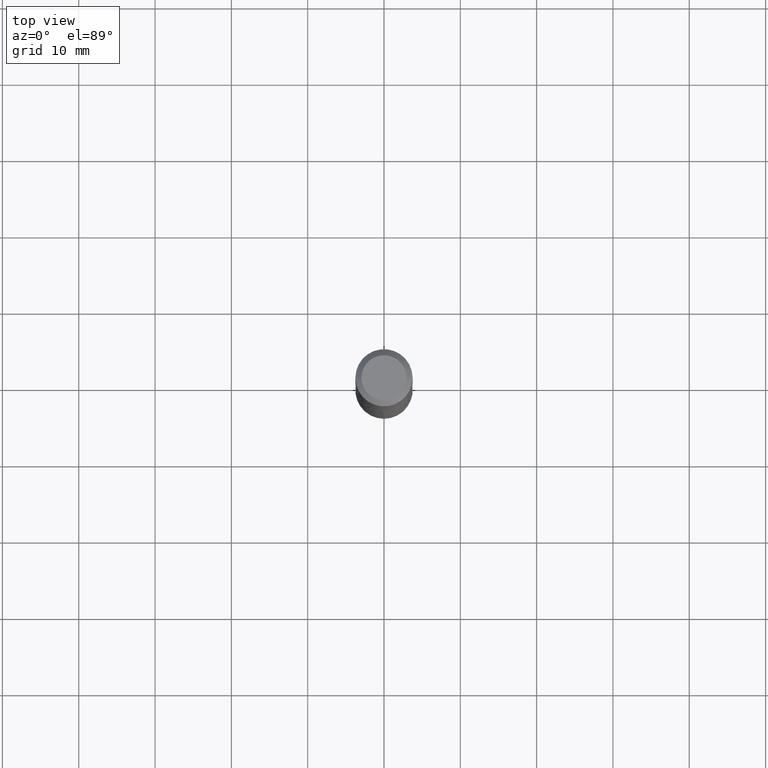
[diagram: clean part render]
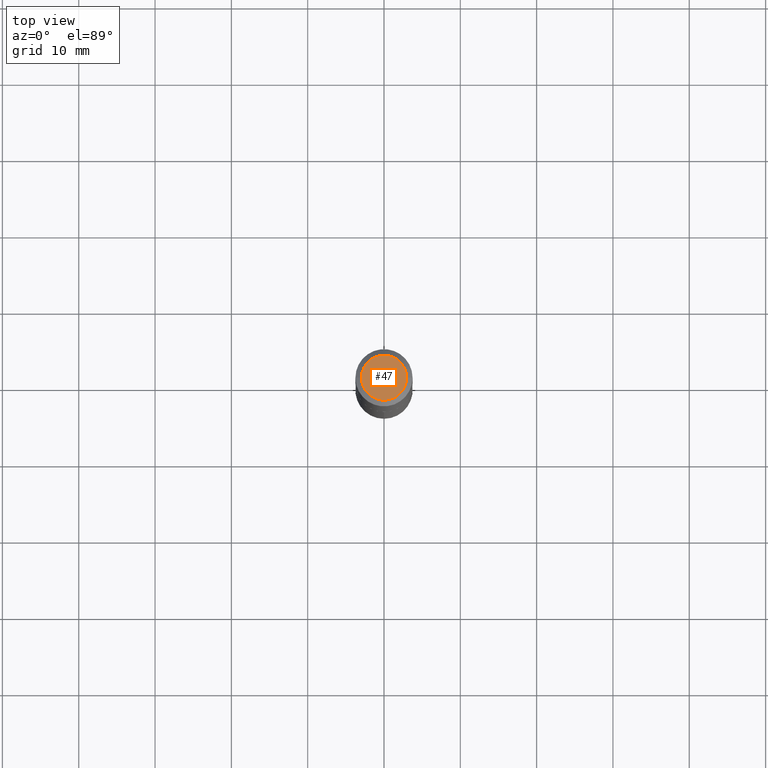
[diagram: same view with one face highlighted and labeled with its STEP entity id]
A machine part, top view. The second image highlights one B-rep face of the part: STEP entity #47.
In plain terms, the highlighted planar face has unit normal (0, -0, -1).
Its self-contained STEP definition (entity closure, byte-faithful):
#9 = CARTESIAN_POINT ( 'NONE',  ( 0.1162499999999999922, -9.592825693755452120E-16, 3.061616997930326664E-19 ) ) ;
#27 = CIRCLE ( 'NONE', #184, 0.1162499999999999922 ) ;
#39 = DIRECTION ( 'NONE',  ( 2.438088387897960049E-29, -3.491481338843145188E-15, -1.000000000000000000 ) ) ;
#47 = ADVANCED_FACE ( 'NONE', ( #139 ), #339, .F. ) ;
#80 = CARTESIAN_POINT ( 'NONE',  ( -7.487088864773370432E-48, 1.068957861474250935E-33, 3.061616997868404646E-19 ) ) ;
#127 = AXIS2_PLACEMENT_3D ( 'NONE', #80, #149, #148 ) ;
#139 = FACE_OUTER_BOUND ( 'NONE', #270, .T. ) ;
#148 = DIRECTION ( 'NONE',  ( 1.000000000000000000, -6.982962677686266711E-15, 4.876177086992617819E-29 ) ) ;
#149 = DIRECTION ( 'NONE',  ( -2.445468806185136597E-29, 3.491481338843145583E-15, 1.000000000000000000 ) ) ;
#156 = VERTEX_POINT ( 'NONE', #244 ) ;
#159 = EDGE_CURVE ( 'NONE', #156, #387, #256, .T. ) ;
#164 = ORIENTED_EDGE ( 'NONE', *, *, #322, .T. ) ;
#167 = DIRECTION ( 'NONE',  ( -1.000000000000000000, 6.982962677686265922E-15, -4.876176775795935793E-29 ) ) ;
#184 = AXIS2_PLACEMENT_3D ( 'NONE', #192, #196, #367 ) ;
#192 = CARTESIAN_POINT ( 'NONE',  ( -7.487088864773370432E-48, 1.068957861474250935E-33, 3.061616997868404646E-19 ) ) ;
#196 = DIRECTION ( 'NONE',  ( -2.445468806185136597E-29, 3.491481338843145583E-15, 1.000000000000000000 ) ) ;
#219 = ORIENTED_EDGE ( 'NONE', *, *, #159, .T. ) ;
#244 = CARTESIAN_POINT ( 'NONE',  ( -0.1162499999999999922, 8.663238072004519116E-16, 3.061616997809728783E-19 ) ) ;
#256 = CIRCLE ( 'NONE', #127, 0.1162499999999999922 ) ;
#270 = EDGE_LOOP ( 'NONE', ( #219, #164 ) ) ;
#303 = AXIS2_PLACEMENT_3D ( 'NONE', #310, #39, #167 ) ;
#310 = CARTESIAN_POINT ( 'NONE',  ( -3.743544432386685216E-48, 5.344789307371254673E-34, 1.530808498934202323E-19 ) ) ;
#322 = EDGE_CURVE ( 'NONE', #387, #156, #27, .T. ) ;
#339 = PLANE ( 'NONE',  #303 ) ;
#367 = DIRECTION ( 'NONE',  ( 1.000000000000000000, -6.982962677686266711E-15, 4.876177086992617819E-29 ) ) ;
#387 = VERTEX_POINT ( 'NONE', #9 ) ;